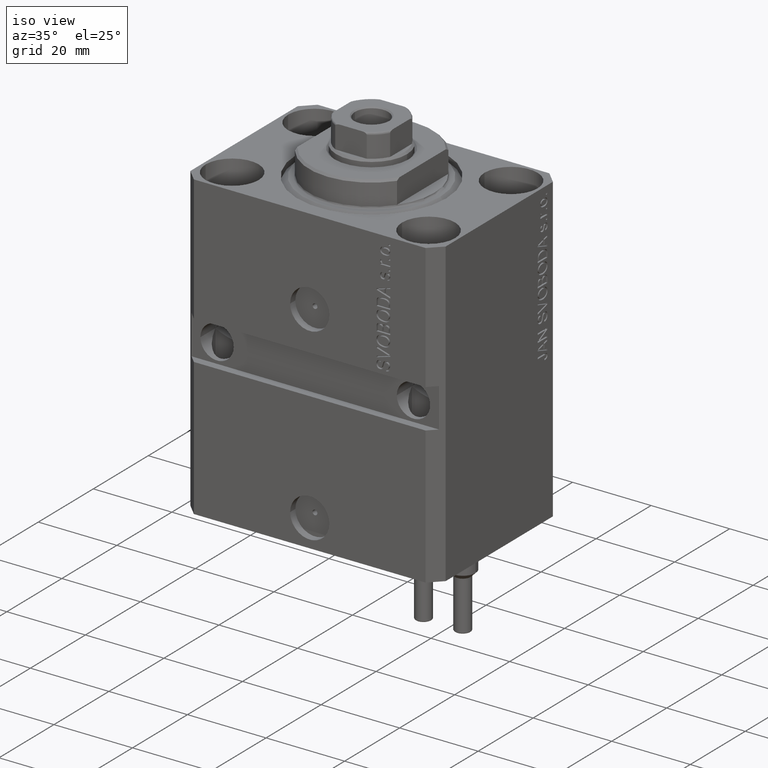
[diagram: clean part render]
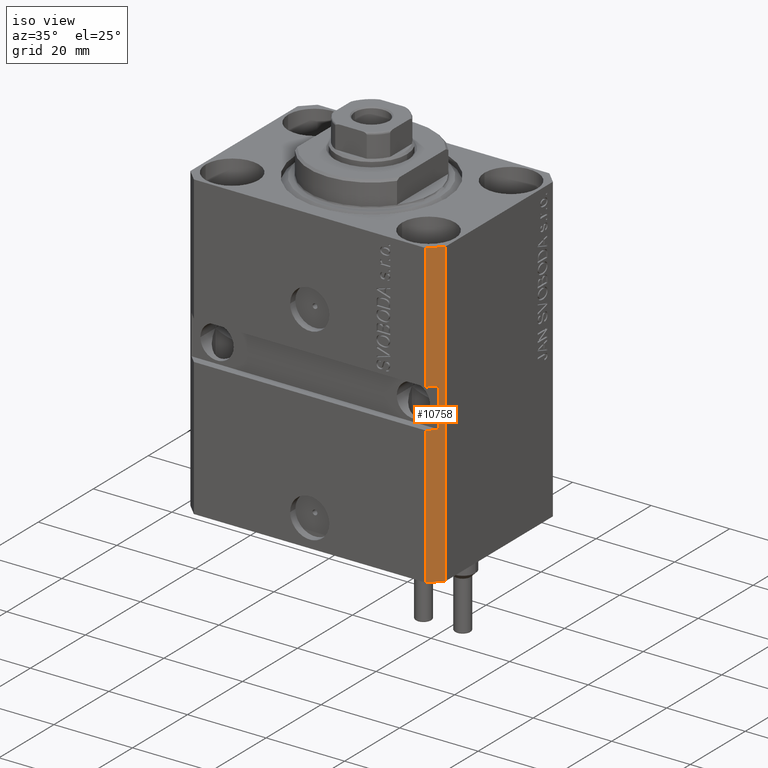
[diagram: same view with one face highlighted and labeled with its STEP entity id]
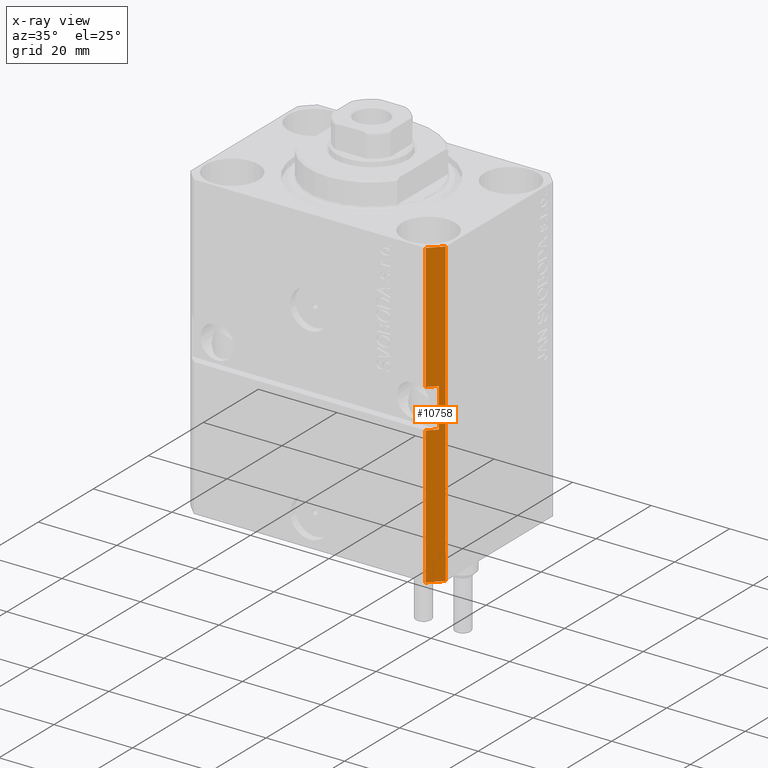
[diagram: x-ray of the same camera — body ghosted, the highlighted face saturated]
A machine part, iso view. The second image highlights one B-rep face of the part: STEP entity #10758.
The next image is the same camera in x-ray: the body ghosted, the highlighted face saturated — about 0% of this face is hidden behind the body in this view.
In plain terms, the highlighted planar face has unit normal (0.7071, -0.7071, 0).
Its self-contained STEP definition (entity closure, byte-faithful):
#100 = ORIENTED_EDGE ( 'NONE', *, *, #30066, .F. ) ;
#749 = LINE ( 'NONE', #16247, #29685 ) ;
#1111 = LINE ( 'NONE', #46241, #46074 ) ;
#1234 = ORIENTED_EDGE ( 'NONE', *, *, #37664, .F. ) ;
#1794 = VECTOR ( 'NONE', #42566, 1000.000000000000000 ) ;
#1814 = LINE ( 'NONE', #43958, #1794 ) ;
#2140 = LINE ( 'NONE', #27611, #8796 ) ;
#4533 = CARTESIAN_POINT ( 'NONE',  ( 32.49999999999651124, -19.49999999999949196, -77.00000000000000000 ) ) ;
#5061 = CARTESIAN_POINT ( 'NONE',  ( 32.49999999999651124, -19.49999999999949196, -77.00000000000000000 ) ) ;
#5648 = ORIENTED_EDGE ( 'NONE', *, *, #13672, .T. ) ;
#7701 = VECTOR ( 'NONE', #30508, 1000.000000000000000 ) ;
#7775 = LINE ( 'NONE', #14571, #46958 ) ;
#8405 = ORIENTED_EDGE ( 'NONE', *, *, #12796, .F. ) ;
#8796 = VECTOR ( 'NONE', #42425, 1000.000000000000000 ) ;
#10254 = DIRECTION ( 'NONE',  ( 0.7071067811865483499, 0.7071067811865466846, 0.000000000000000000 ) ) ;
#10420 = CARTESIAN_POINT ( 'NONE',  ( 29.49999999999650413, -22.49999999999949196, -32.00000000000000711 ) ) ;
#10758 = ADVANCED_FACE ( 'NONE', ( #19924 ), #31121, .T. ) ;
#11690 = EDGE_LOOP ( 'NONE', ( #1234, #100, #28738, #23263, #30894, #8405, #42950, #5648 ) ) ;
#12796 = EDGE_CURVE ( 'NONE', #15793, #24203, #44992, .T. ) ;
#13260 = EDGE_CURVE ( 'NONE', #17210, #44523, #749, .T. ) ;
#13672 = EDGE_CURVE ( 'NONE', #45253, #26775, #2140, .T. ) ;
#14131 = CARTESIAN_POINT ( 'NONE',  ( 29.49999999999650413, -22.49999999999949196, 0.000000000000000000 ) ) ;
#14571 = CARTESIAN_POINT ( 'NONE',  ( 29.49999999999650058, -22.49999999999949551, -41.99999999999998579 ) ) ;
#15054 = DIRECTION ( 'NONE',  ( 0.7071067811865483499, 0.7071067811865466846, 0.000000000000000000 ) ) ;
#15126 = CARTESIAN_POINT ( 'NONE',  ( 29.49999999999650413, -22.49999999999949196, -77.00000000000000000 ) ) ;
#15793 = VERTEX_POINT ( 'NONE', #10420 ) ;
#16247 = CARTESIAN_POINT ( 'NONE',  ( 29.49999999999650413, -22.49999999999949196, -77.00000000000000000 ) ) ;
#17210 = VERTEX_POINT ( 'NONE', #42485 ) ;
#17747 = LINE ( 'NONE', #14131, #20990 ) ;
#18503 = DIRECTION ( 'NONE',  ( 0.000000000000000000, 0.000000000000000000, 1.000000000000000000 ) ) ;
#19924 = FACE_OUTER_BOUND ( 'NONE', #11690, .T. ) ;
#20990 = VECTOR ( 'NONE', #10254, 1000.000000000000000 ) ;
#23263 = ORIENTED_EDGE ( 'NONE', *, *, #44916, .T. ) ;
#23361 = EDGE_CURVE ( 'NONE', #24203, #25445, #17747, .T. ) ;
#24203 = VERTEX_POINT ( 'NONE', #39456 ) ;
#25445 = VERTEX_POINT ( 'NONE', #26034 ) ;
#25745 = DIRECTION ( 'NONE',  ( 0.7071067811865466846, -0.7071067811865483499, 0.000000000000000000 ) ) ;
#25750 = CARTESIAN_POINT ( 'NONE',  ( 31.49999999999650413, -20.49999999999949196, -41.99999999999998579 ) ) ;
#26034 = CARTESIAN_POINT ( 'NONE',  ( 32.49999999999651124, -19.49999999999949196, 0.000000000000000000 ) ) ;
#26775 = VERTEX_POINT ( 'NONE', #25750 ) ;
#27611 = CARTESIAN_POINT ( 'NONE',  ( 31.49999999999651124, -20.49999999999949551, -77.00000000000000000 ) ) ;
#28097 = EDGE_CURVE ( 'NONE', #45253, #15793, #1814, .T. ) ;
#28422 = VERTEX_POINT ( 'NONE', #35651 ) ;
#28738 = ORIENTED_EDGE ( 'NONE', *, *, #13260, .T. ) ;
#29685 = VECTOR ( 'NONE', #38128, 1000.000000000000000 ) ;
#30066 = EDGE_CURVE ( 'NONE', #17210, #28422, #1111, .T. ) ;
#30508 = DIRECTION ( 'NONE',  ( 0.000000000000000000, 0.000000000000000000, 1.000000000000000000 ) ) ;
#30894 = ORIENTED_EDGE ( 'NONE', *, *, #23361, .F. ) ;
#31121 = PLANE ( 'NONE',  #39708 ) ;
#35651 = CARTESIAN_POINT ( 'NONE',  ( 29.49999999999650058, -22.49999999999949196, -41.99999999999998579 ) ) ;
#37664 = EDGE_CURVE ( 'NONE', #28422, #26775, #7775, .T. ) ;
#38128 = DIRECTION ( 'NONE',  ( 0.7071067811865483499, 0.7071067811865466846, 0.000000000000000000 ) ) ;
#38152 = CARTESIAN_POINT ( 'NONE',  ( 31.49999999999651124, -20.49999999999949196, -32.00000000000000711 ) ) ;
#38507 = LINE ( 'NONE', #4533, #7701 ) ;
#38960 = DIRECTION ( 'NONE',  ( 0.000000000000000000, 0.000000000000000000, 1.000000000000000000 ) ) ;
#39456 = CARTESIAN_POINT ( 'NONE',  ( 29.49999999999650413, -22.49999999999949196, 0.000000000000000000 ) ) ;
#39708 = AXIS2_PLACEMENT_3D ( 'NONE', #40797, #25745, #15054 ) ;
#40310 = DIRECTION ( 'NONE',  ( 0.7071067811865483499, 0.7071067811865466846, 7.548521435980509068E-17 ) ) ;
#40797 = CARTESIAN_POINT ( 'NONE',  ( 29.49999999999650413, -22.49999999999949196, -77.00000000000000000 ) ) ;
#42091 = VECTOR ( 'NONE', #18503, 1000.000000000000000 ) ;
#42425 = DIRECTION ( 'NONE',  ( 0.000000000000000000, 0.000000000000000000, -1.000000000000000000 ) ) ;
#42485 = CARTESIAN_POINT ( 'NONE',  ( 29.49999999999650413, -22.49999999999949196, -77.00000000000000000 ) ) ;
#42566 = DIRECTION ( 'NONE',  ( -0.7071067811865483499, -0.7071067811865466846, 7.548521435980509068E-17 ) ) ;
#42950 = ORIENTED_EDGE ( 'NONE', *, *, #28097, .F. ) ;
#43958 = CARTESIAN_POINT ( 'NONE',  ( 29.49999999999650768, -22.49999999999948841, -32.00000000000000711 ) ) ;
#44523 = VERTEX_POINT ( 'NONE', #5061 ) ;
#44916 = EDGE_CURVE ( 'NONE', #44523, #25445, #38507, .T. ) ;
#44992 = LINE ( 'NONE', #15126, #42091 ) ;
#45253 = VERTEX_POINT ( 'NONE', #38152 ) ;
#46074 = VECTOR ( 'NONE', #38960, 1000.000000000000000 ) ;
#46241 = CARTESIAN_POINT ( 'NONE',  ( 29.49999999999650413, -22.49999999999949196, -77.00000000000000000 ) ) ;
#46958 = VECTOR ( 'NONE', #40310, 1000.000000000000000 ) ;